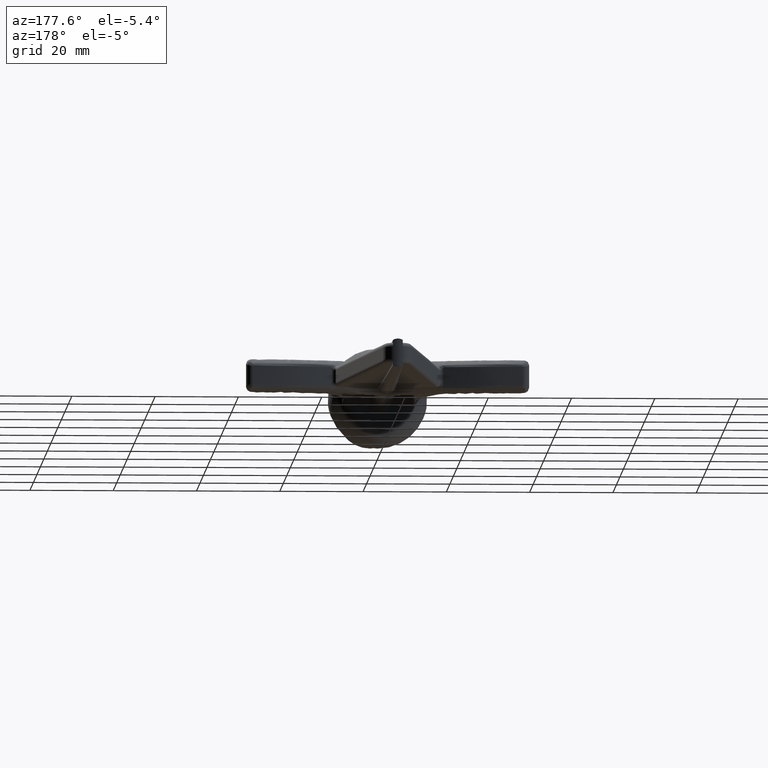
[diagram: clean part render]
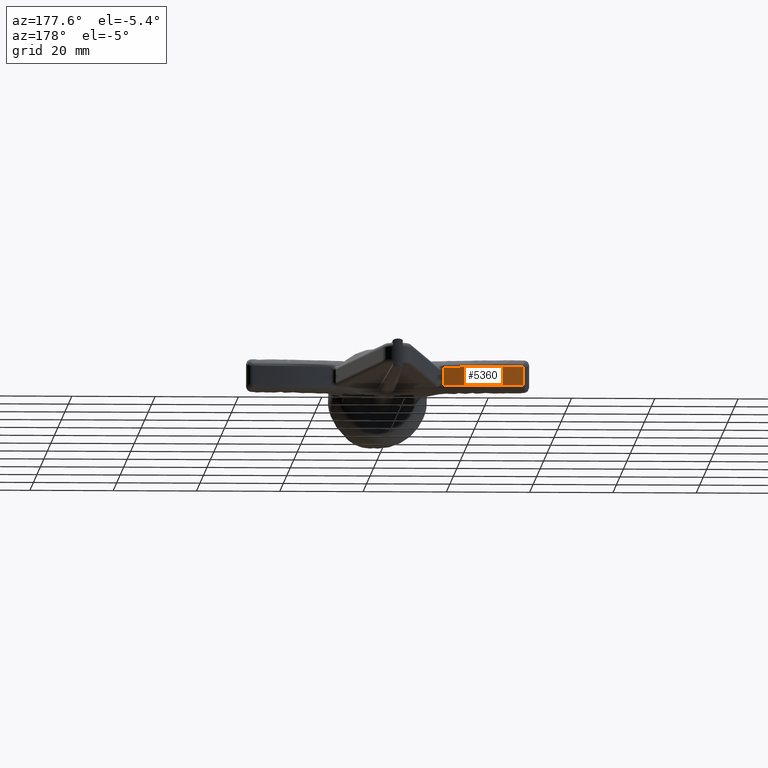
[diagram: same view with one face highlighted and labeled with its STEP entity id]
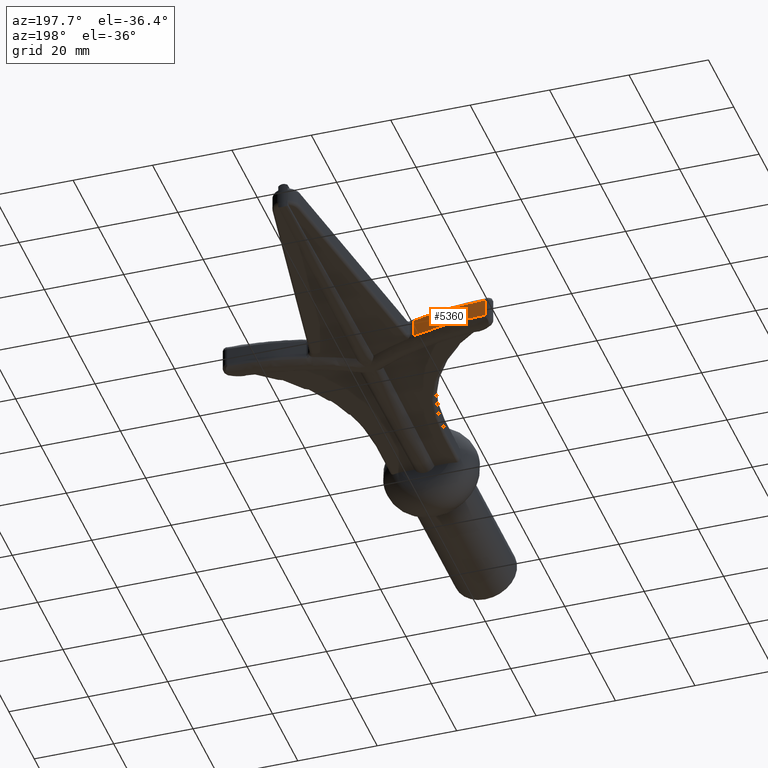
[diagram: same view with one face highlighted and labeled with its STEP entity id]
A machine part, auxiliary view. The second image highlights one B-rep face of the part: STEP entity #5360.
A second angle (auxiliary view) of the same face is appended — the face is thin or edge-on in the first view.
In plain terms, the highlighted cylindrical surface (partial cylindrical patch) has radius 70 mm, axis along (-0, -0, -1).
Its self-contained STEP definition (entity closure, byte-faithful):
#63 = LINE ( 'NONE', #10357, #6886 ) ;
#554 = EDGE_CURVE ( 'NONE', #2874, #8103, #6622, .T. ) ;
#1423 = CARTESIAN_POINT ( 'NONE',  ( -13.58726211963168851, 99.31940496172157395, 2.500000000000000000 ) ) ;
#1646 = VERTEX_POINT ( 'NONE', #11412 ) ;
#2100 = CARTESIAN_POINT ( 'NONE',  ( -13.58726211963168851, 99.31940496172157395, 2.220771013825172169 ) ) ;
#2127 = CARTESIAN_POINT ( 'NONE',  ( -21.36729130396206244, 101.0829531804806152, 2.220771013825176166 ) ) ;
#2747 = CARTESIAN_POINT ( 'NONE',  ( -15.12362292703907407, 99.75726419506865739, -2.220771013825165952 ) ) ;
#2874 = VERTEX_POINT ( 'NONE', #2100 ) ;
#3379 = VECTOR ( 'NONE', #12463, 1000.000000000000000 ) ;
#3836 = CARTESIAN_POINT ( 'NONE',  ( -16.67298317865922641, 100.1419853022147777, -2.220771013825165507 ) ) ;
#3884 = CARTESIAN_POINT ( 'NONE',  ( -30.89649440110992629, 101.9930735541304330, -2.220771013825264095 ) ) ;
#4427 = CARTESIAN_POINT ( 'NONE',  ( -32.49401894307931826, 101.9994435282476815, 2.220771013825164619 ) ) ;
#4732 = DIRECTION ( 'NONE',  ( -0.000000000000000000, -0.000000000000000000, -1.000000000000000000 ) ) ;
#5360 = ADVANCED_FACE ( 'NONE', ( #7729 ), #14063, .T. ) ;
#5481 = CARTESIAN_POINT ( 'NONE',  ( -29.29907870524198543, 101.9319664204329428, 2.220771013825163287 ) ) ;
#5626 = CARTESIAN_POINT ( 'NONE',  ( -13.58726211963168851, 99.31940496172157395, -2.220771013825165952 ) ) ;
#6336 = CARTESIAN_POINT ( 'NONE',  ( -26.11487303633673562, 101.7009046985231464, -2.220771013825140638 ) ) ;
#6492 = DIRECTION ( 'NONE',  ( -0.000000000000000000, -0.000000000000000000, -1.000000000000000000 ) ) ;
#6622 = LINE ( 'NONE', #1423, #3379 ) ;
#6730 = ORIENTED_EDGE ( 'NONE', *, *, #12074, .T. ) ;
#6743 = EDGE_CURVE ( 'NONE', #1646, #2874, #10937, .T. ) ;
#6886 = VECTOR ( 'NONE', #6492, 1000.000000000000000 ) ;
#6960 = CARTESIAN_POINT ( 'NONE',  ( -13.58726211963168851, 99.31940496172157395, 2.220771013825172169 ) ) ;
#7388 = CARTESIAN_POINT ( 'NONE',  ( -32.49401894307931826, 101.9994435282476815, -2.220771013825147744 ) ) ;
#7729 = FACE_OUTER_BOUND ( 'NONE', #15086, .T. ) ;
#7977 = EDGE_CURVE ( 'NONE', #1646, #14352, #63, .T. ) ;
#8103 = VERTEX_POINT ( 'NONE', #5626 ) ;
#8314 = CARTESIAN_POINT ( 'NONE',  ( -19.79298617186247000, 100.8045080883960480, 2.220771013825185936 ) ) ;
#8749 = CARTESIAN_POINT ( 'NONE',  ( -29.29934706256190324, 101.9319766995509440, -2.220771013825138418 ) ) ;
#10357 = CARTESIAN_POINT ( 'NONE',  ( -32.49401894307931826, 101.9994435282476815, 2.500000000000000000 ) ) ;
#10667 = DIRECTION ( 'NONE',  ( -1.000000000000000000, 0.000000000000000000, 0.000000000000000000 ) ) ;
#10736 = CARTESIAN_POINT ( 'NONE',  ( -24.52798372126185100, 101.5310374618436384, 2.220771013825170836 ) ) ;
#10844 = CARTESIAN_POINT ( 'NONE',  ( -15.12375190933417812, 99.75730095472081871, 2.220771013825160622 ) ) ;
#10937 = B_SPLINE_CURVE_WITH_KNOTS ( 'NONE', 3,
 ( #4427, #12974, #5481, #14426, #10736, #2127, #8314, #14322, #10844, #6960 ),
 .UNSPECIFIED., .F., .F.,
 ( 4, 2, 2, 2, 4 ),
 ( 0.000000000000000000, 0.004791321215102657335, 0.009582642430205314671, 0.01437396364530797201, 0.01916528486041062934 ),
 .UNSPECIFIED. ) ;
#11215 = CARTESIAN_POINT ( 'NONE',  ( -24.52864906117968502, 101.5311132676092001, -2.220771013825181495 ) ) ;
#11328 = CARTESIAN_POINT ( 'NONE',  ( -19.79403842659834467, 100.8047098774188584, -2.220771013825164175 ) ) ;
#11412 = CARTESIAN_POINT ( 'NONE',  ( -32.49401894307931826, 101.9994435282476815, 2.220771013825164619 ) ) ;
#11699 = AXIS2_PLACEMENT_3D ( 'NONE', #13170, #4732, #10667 ) ;
#12074 = EDGE_CURVE ( 'NONE', #8103, #14352, #12091, .T. ) ;
#12091 = B_SPLINE_CURVE_WITH_KNOTS ( 'NONE', 3,
 ( #12387, #2747, #3836, #11328, #14851, #11215, #6336, #8749, #3884, #14901 ),
 .UNSPECIFIED., .F., .F.,
 ( 4, 2, 2, 2, 4 ),
 ( 0.000000000000000000, 0.004792577484235129547, 0.009585154968470259093, 0.01437773245270538777, 0.01917030993694051819 ),
 .UNSPECIFIED. ) ;
#12214 = ORIENTED_EDGE ( 'NONE', *, *, #7977, .F. ) ;
#12387 = CARTESIAN_POINT ( 'NONE',  ( -13.58726211963168851, 99.31940496172157395, -2.220771013825165952 ) ) ;
#12463 = DIRECTION ( 'NONE',  ( -0.000000000000000000, -0.000000000000000000, -1.000000000000000000 ) ) ;
#12974 = CARTESIAN_POINT ( 'NONE',  ( -30.89636028392799361, 101.9930730193511579, 2.220771013825165063 ) ) ;
#13170 = CARTESIAN_POINT ( 'NONE',  ( -32.77313493271324774, 32.00000000000002842, 2.500000000000000000 ) ) ;
#13212 = ORIENTED_EDGE ( 'NONE', *, *, #554, .T. ) ;
#14063 = CYLINDRICAL_SURFACE ( 'NONE', #11699, 70.00000000000000000 ) ;
#14322 = CARTESIAN_POINT ( 'NONE',  ( -16.67221706315465468, 100.1418009660567918, 2.220771013825187712 ) ) ;
#14352 = VERTEX_POINT ( 'NONE', #7388 ) ;
#14426 = CARTESIAN_POINT ( 'NONE',  ( -26.11433935424717490, 101.7008567776924224, 2.220771013825163287 ) ) ;
#14705 = ORIENTED_EDGE ( 'NONE', *, *, #6743, .T. ) ;
#14851 = CARTESIAN_POINT ( 'NONE',  ( -21.36821793149663407, 101.0831030550479284, -2.220771013825183271 ) ) ;
#14901 = CARTESIAN_POINT ( 'NONE',  ( -32.49401894307931826, 101.9994435282476815, -2.220771013825147744 ) ) ;
#15086 = EDGE_LOOP ( 'NONE', ( #12214, #14705, #13212, #6730 ) ) ;